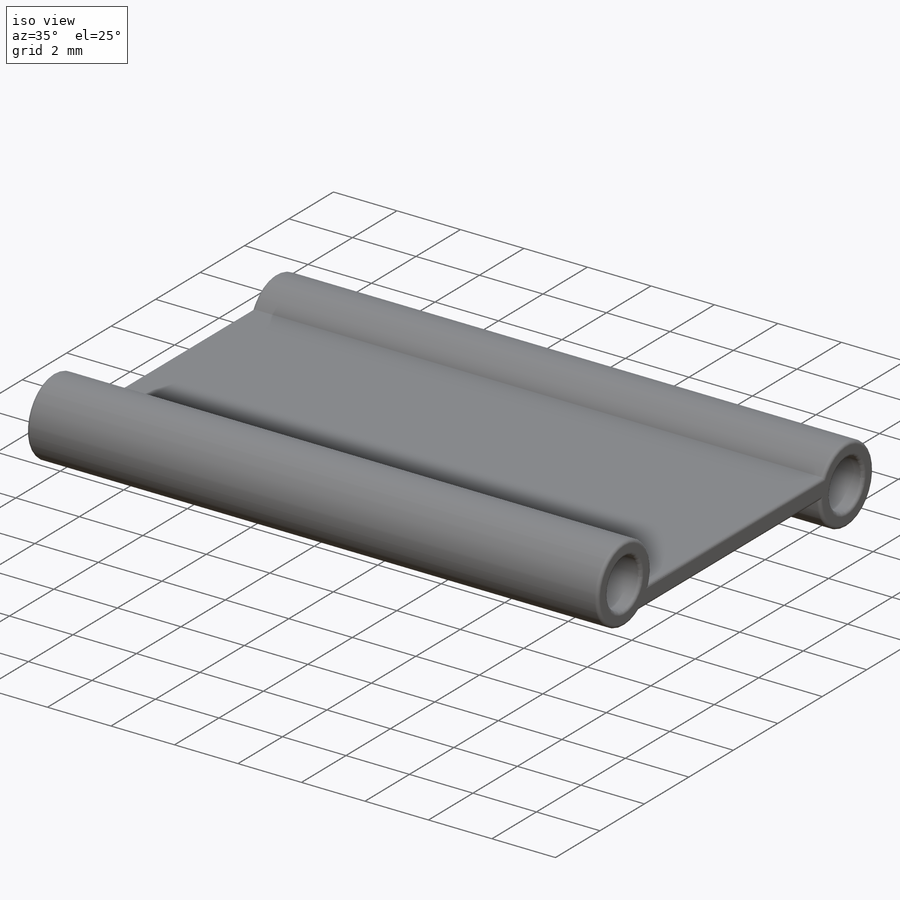
[diagram: iso view]
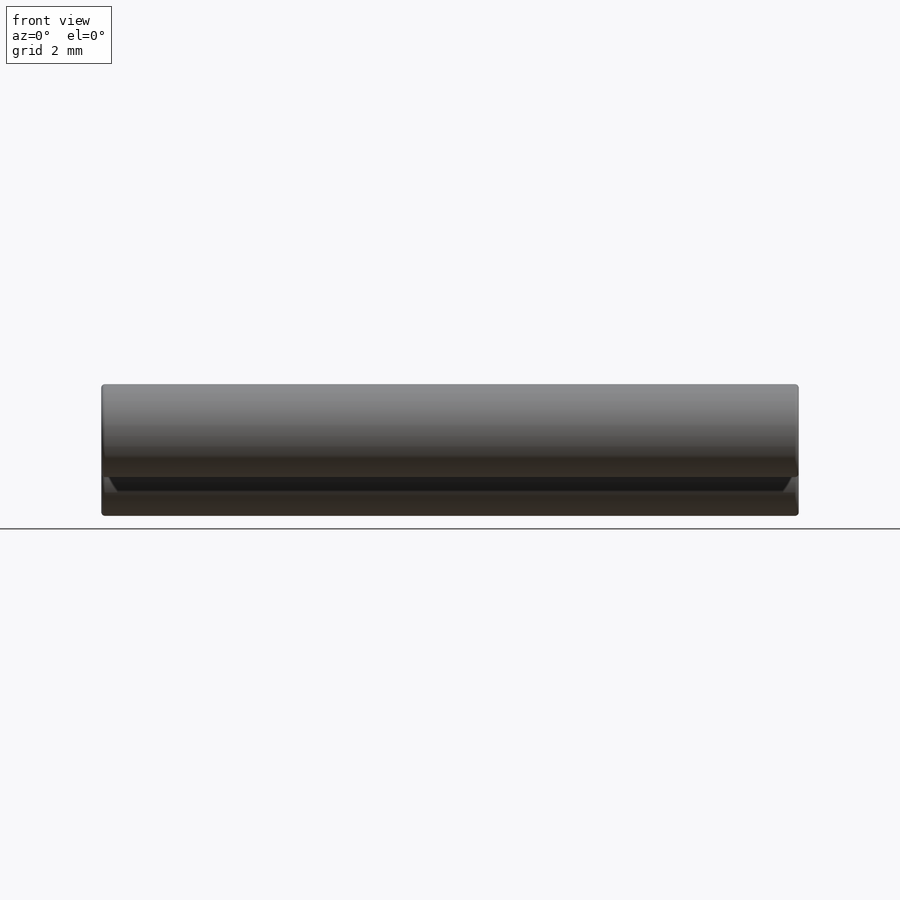
[diagram: front view]
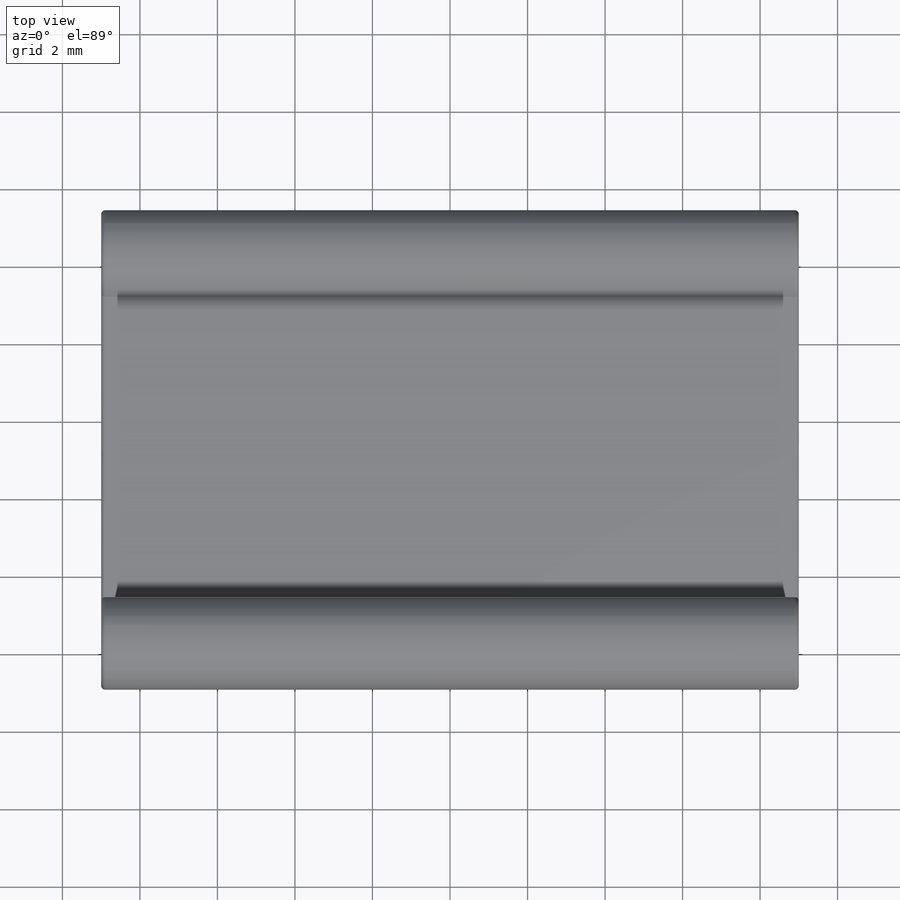
[diagram: top view]
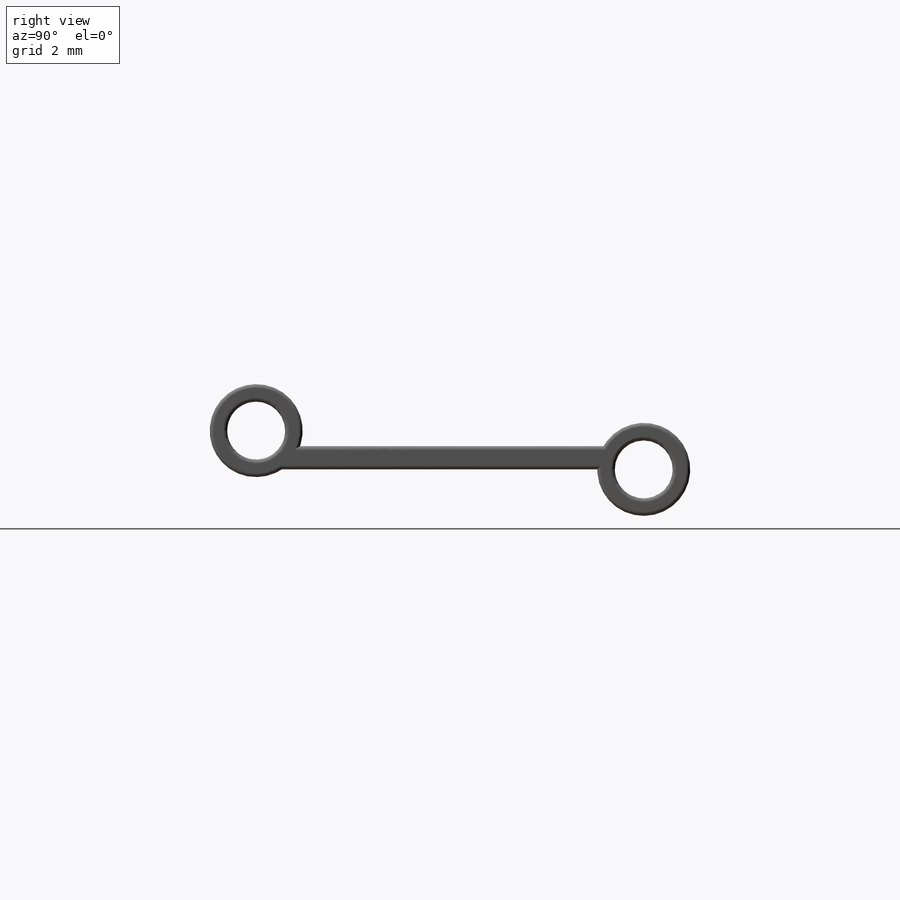
[diagram: right view]
SOLIDWORKS PART (.sldprt)
format: sldprt  version: not decoded by parser v0  size: 381,440 bytes
history: native  units: mm
features: sketch x4, extrude x2, cut_extrude x2, material x1, fillet x1 (+11 scaffold rows collapsed)
feature tree (21):
  scaffold x11  (default folders/planes/origin — collapsed)
  material  "Material <not specified>"
  sketch  "Sketch1"  dims[D1=18.0mm D2=9.0mm D3=10.0mm D4=6.25mm]
  extrude  "Boss-Extrude1"  Depth=0.6mm
  sketch  "Sketch2"  dims[c1.D1=2.4mm c1.D2=2.4mm c1.D3=2.4mm c1.D4=2.4mm c1.D5=2.4mm c1.D6=2.4mm c2.D3=1.0mm c2.D4=0.0mm c2.D5=0.0mm c2.D6=0.0mm]
  extrude  "Boss-Extrude2"  Depth=18mm
  sketch  "Sketch3"  dims[D1=1.5mm D2=1.5mm]
  cut_extrude  "Cut-Extrude1"  Depth=18mm
  sketch  "Sketch8"  dims[D1=1.2mm D2=0.6mm]
  cut_extrude  "Cut-Extrude4"  Depth=12mm
  fillet  "Fillet5"  Radius=0.1mm
decode coverage: 9 of 9 modeling features carry decoded parameters
note: suppression state not decoded; provenance and decode notes live in map.json
